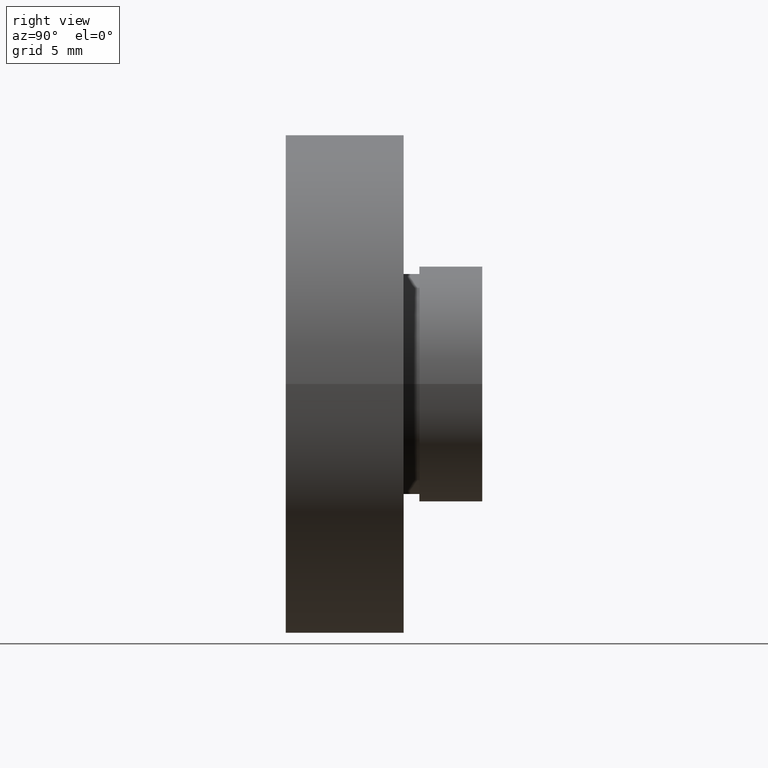
[diagram: clean part render]
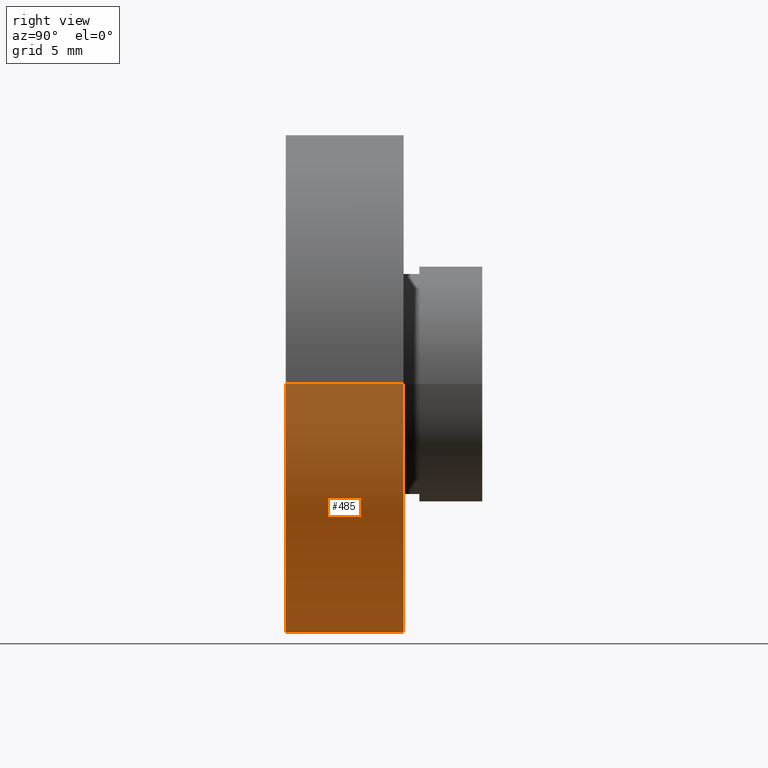
[diagram: same view with one face highlighted and labeled with its STEP entity id]
A machine part, right view. The second image highlights one B-rep face of the part: STEP entity #485.
In plain terms, the highlighted cylindrical surface (partial cylindrical patch) has radius 15.875 mm, axis along (-0, 1, -0).
Its self-contained STEP definition (entity closure, byte-faithful):
#11 = DIRECTION ( 'NONE',  ( -1.224646799147351000E-016, 1.000000000000000000, -0.0000000000000000000 ) ) ;
#16 = AXIS2_PLACEMENT_3D ( 'NONE', #525, #579, #441 ) ;
#39 = CARTESIAN_POINT ( 'NONE',  ( 15.87500000000000000, 7.500000000000000000, 1.944126793646423200E-015 ) ) ;
#43 = VERTEX_POINT ( 'NONE', #39 ) ;
#57 = ORIENTED_EDGE ( 'NONE', *, *, #604, .T. ) ;
#76 = CARTESIAN_POINT ( 'NONE',  ( 15.87500000000000000, -1.525320158307194900E-015, 1.944126793646423200E-015 ) ) ;
#91 = LINE ( 'NONE', #353, #118 ) ;
#100 = CIRCLE ( 'NONE', #560, 15.87499999999999600 ) ;
#107 = EDGE_CURVE ( 'NONE', #43, #387, #495, .T. ) ;
#118 = VECTOR ( 'NONE', #203, 1000.000000000000000 ) ;
#131 = LINE ( 'NONE', #595, #401 ) ;
#163 = VERTEX_POINT ( 'NONE', #233 ) ;
#200 = ORIENTED_EDGE ( 'NONE', *, *, #213, .F. ) ;
#203 = DIRECTION ( 'NONE',  ( -1.224646799147351000E-016, 1.000000000000000000, -0.0000000000000000000 ) ) ;
#213 = EDGE_CURVE ( 'NONE', #397, #43, #91, .T. ) ;
#233 = CARTESIAN_POINT ( 'NONE',  ( -15.87499999999999300, -5.413573745600033100E-015, 0.0000000000000000000 ) ) ;
#241 = CARTESIAN_POINT ( 'NONE',  ( 0.0000000000000000000, 16.88601823708207700, 0.0000000000000000000 ) ) ;
#284 = ORIENTED_EDGE ( 'NONE', *, *, #107, .F. ) ;
#304 = EDGE_CURVE ( 'NONE', #397, #163, #100, .T. ) ;
#316 = DIRECTION ( 'NONE',  ( -1.224646799147351000E-016, 1.000000000000000000, -0.0000000000000000000 ) ) ;
#347 = CYLINDRICAL_SURFACE ( 'NONE', #590, 15.87500000000000000 ) ;
#353 = CARTESIAN_POINT ( 'NONE',  ( 15.87500000000000000, 16.88601823708208000, 1.944126793646423200E-015 ) ) ;
#359 = CARTESIAN_POINT ( 'NONE',  ( 2.067940818438636500E-015, -3.469446951953614200E-015, 0.0000000000000000000 ) ) ;
#381 = ORIENTED_EDGE ( 'NONE', *, *, #304, .T. ) ;
#387 = VERTEX_POINT ( 'NONE', #554 ) ;
#394 = DIRECTION ( 'NONE',  ( -1.000000000000000000, -2.185478394931410600E-016, 0.0000000000000000000 ) ) ;
#397 = VERTEX_POINT ( 'NONE', #76 ) ;
#401 = VECTOR ( 'NONE', #536, 1000.000000000000000 ) ;
#437 = EDGE_LOOP ( 'NONE', ( #200, #381, #57, #284 ) ) ;
#441 = DIRECTION ( 'NONE',  ( -1.000000000000000000, -1.092739197465705300E-016, 0.0000000000000000000 ) ) ;
#485 = ADVANCED_FACE ( 'NONE', ( #505 ), #347, .T. ) ;
#495 = CIRCLE ( 'NONE', #16, 15.87500000000000000 ) ;
#505 = FACE_OUTER_BOUND ( 'NONE', #437, .T. ) ;
#525 = CARTESIAN_POINT ( 'NONE',  ( 1.149455719078122700E-015, 7.499999999999998200, 0.0000000000000000000 ) ) ;
#536 = DIRECTION ( 'NONE',  ( -1.224646799147351000E-016, 1.000000000000000000, -0.0000000000000000000 ) ) ;
#554 = CARTESIAN_POINT ( 'NONE',  ( -15.87500000000000000, 7.499999999999996400, 0.0000000000000000000 ) ) ;
#560 = AXIS2_PLACEMENT_3D ( 'NONE', #359, #316, #603 ) ;
#579 = DIRECTION ( 'NONE',  ( -1.224646799147351000E-016, 1.000000000000000000, -0.0000000000000000000 ) ) ;
#590 = AXIS2_PLACEMENT_3D ( 'NONE', #241, #11, #394 ) ;
#595 = CARTESIAN_POINT ( 'NONE',  ( -15.87500000000000000, 16.88601823708207300, 0.0000000000000000000 ) ) ;
#603 = DIRECTION ( 'NONE',  ( -1.000000000000000000, -1.224646799147350700E-016, 0.0000000000000000000 ) ) ;
#604 = EDGE_CURVE ( 'NONE', #163, #387, #131, .T. ) ;